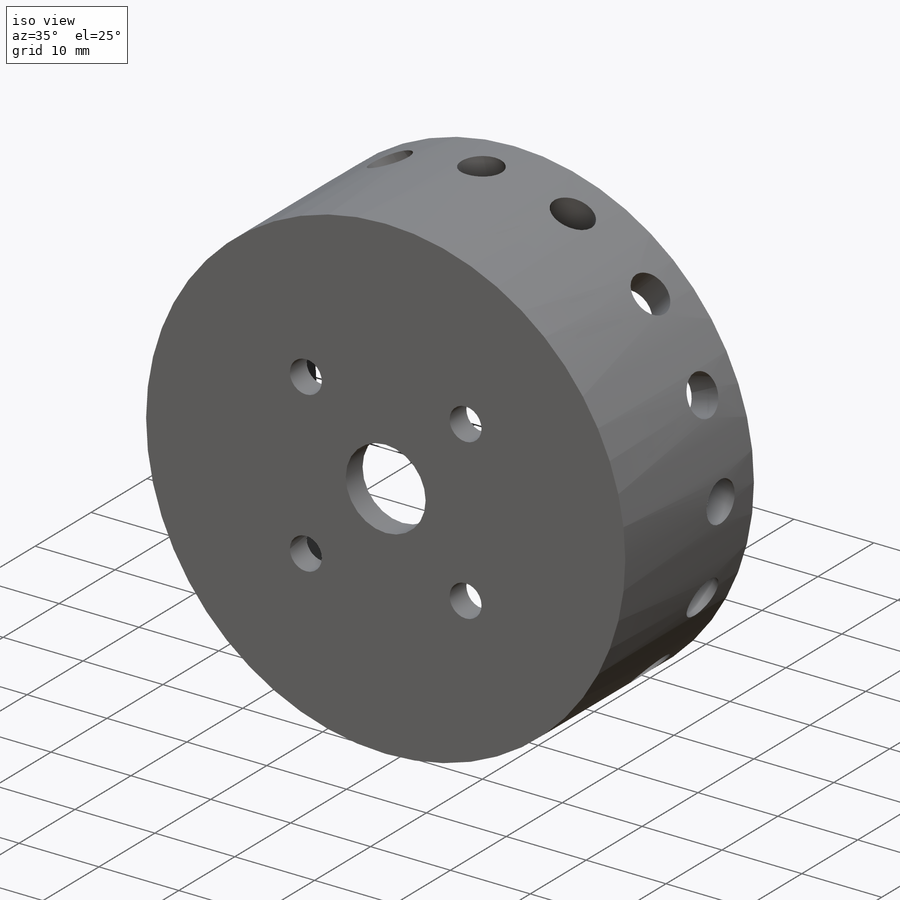
[diagram: iso view]
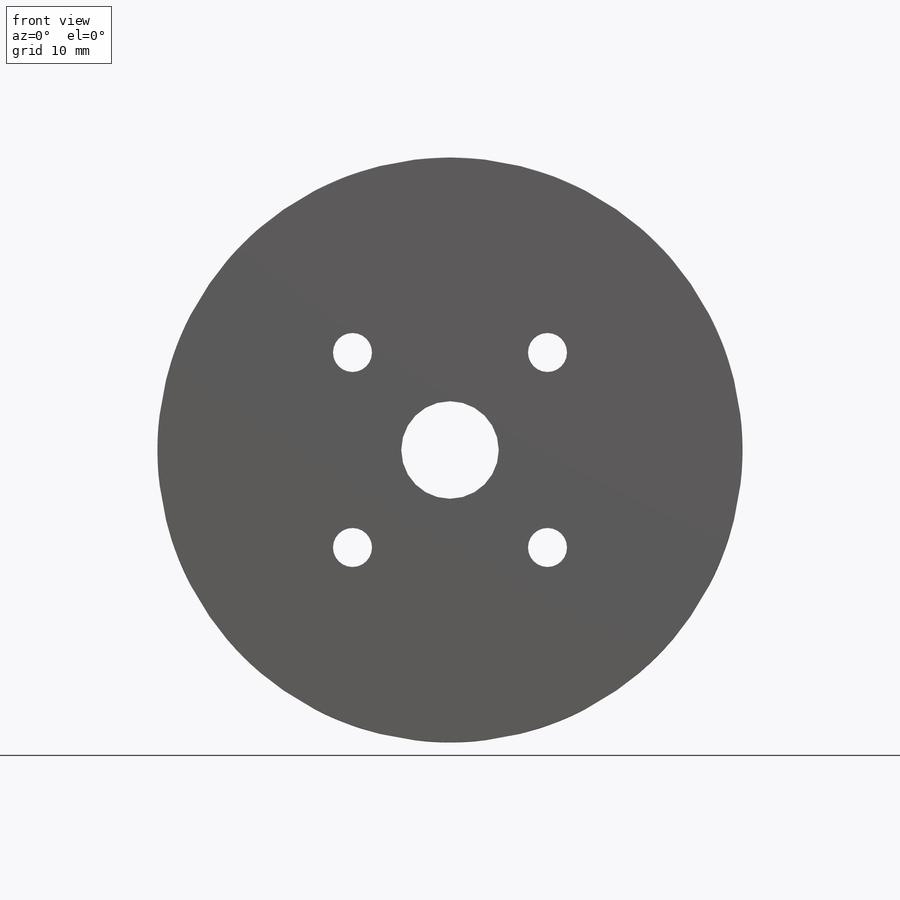
[diagram: front view]
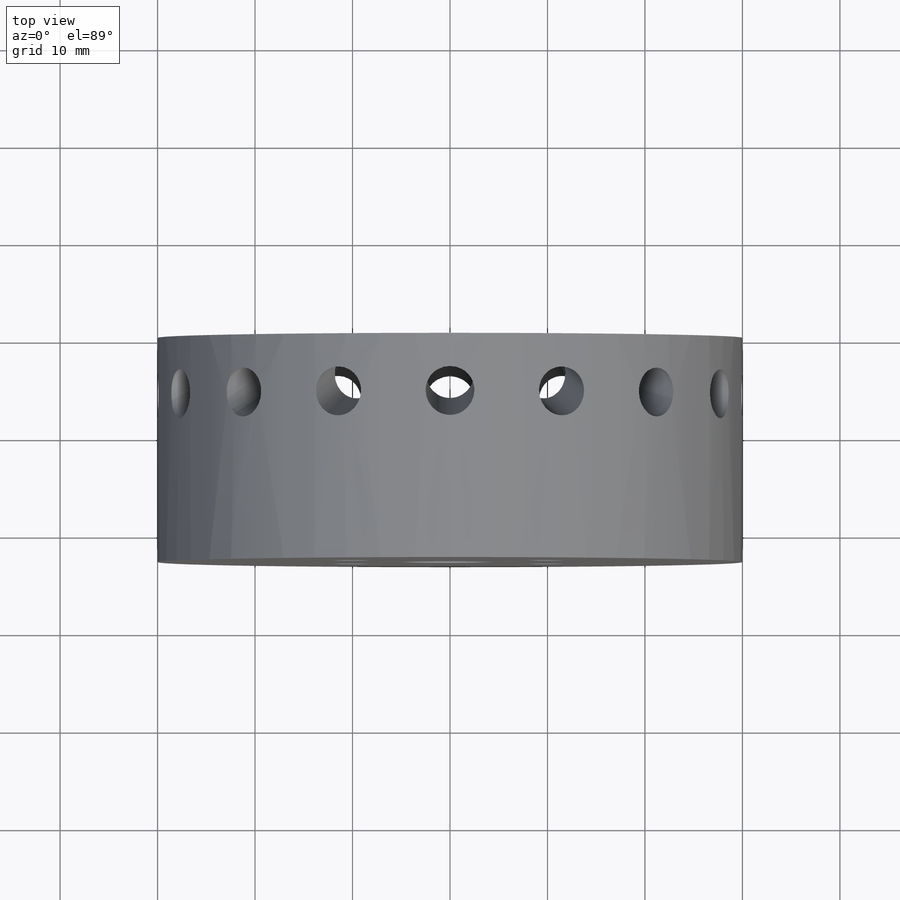
[diagram: top view]
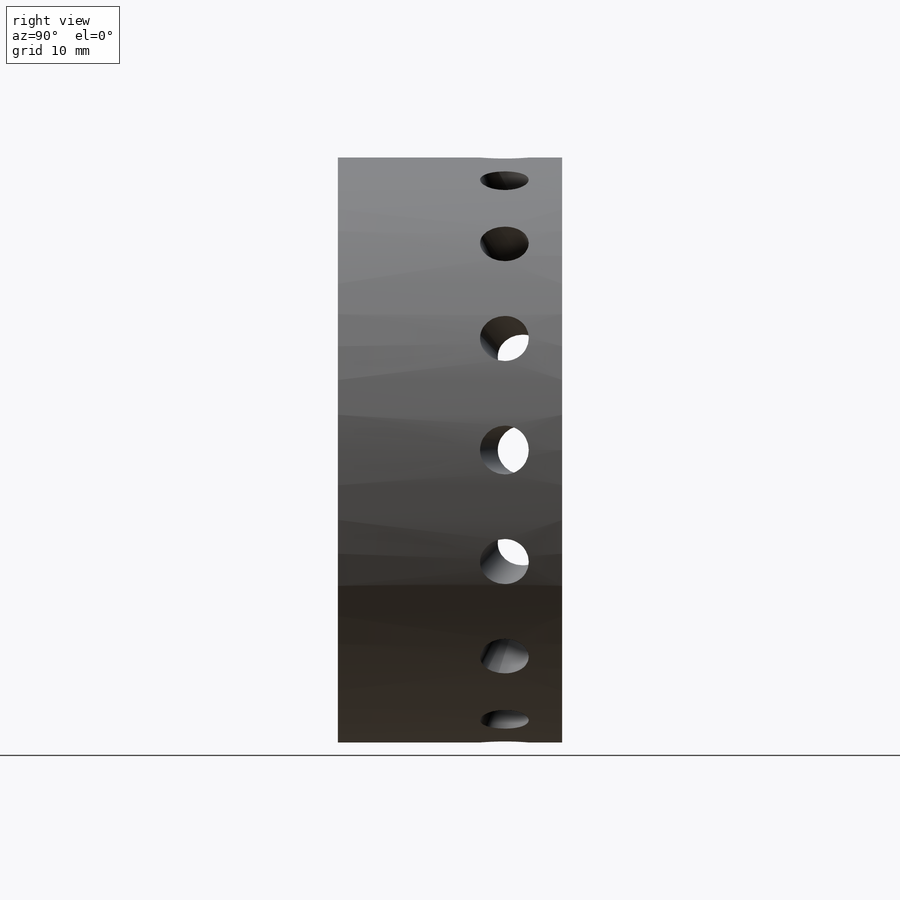
[diagram: right view]
SOLIDWORKS PART (.sldprt)
format: sldprt  version: not decoded by parser v0  size: 269,312 bytes
history: native  units: mm
features: sketch x6, plane x3, extrude x2, cut_extrude x2, pattern_circular x2, material x1, sweep x1 (+10 scaffold rows collapsed)
feature tree (27):
  scaffold x10  (default folders/planes/origin — collapsed)
  material  "Matériau <non spécifié>"
  plane  "Plan de face"
  plane  "Plan de dessus"
  plane  "Plan de droite"
  sketch  "Esquisse1"  dims[D1=60.0mm D2=50.0mm]
  extrude  "Boss.-Extru.1"  Depth=20mm
  sketch  "Esquisse2"
  extrude  "Boss.-Extru.2"  Depth=3mm
  sketch  "Esquisse4"  dims[D1=4.0mm D2=10.0mm D3=10.0mm]
  cut_extrude  "Enlèv. mat.-Extru.1"  [1 undecoded]
  pattern_circular  "Répétition circulaire1"  Count=4 Angle=90deg
  sketch  "Esquisse5"  dims[D1=5.0mm D2=0.0mm D3=5.0mm]
  sketch  "Esquisse6"  dims[c1.D1=~22.075126mm c2.D1=70.0deg c2.D2=0.0mm c2.D3=6.0mm]
  sweep  "Enlèvement de matière-Balayage1"
  pattern_circular  "Répétition circulaire2"  Count=16 Angle=360deg
  sketch  "Esquisse7"  dims[D1=10.0mm]
  cut_extrude  "Enlèv. mat.-Extru.2"  [1 undecoded]
decode coverage: 9 of 13 modeling features carry decoded parameters
note: ~ marks probable driven/reference dimensions
note: 2 parameter values undecoded
note: suppression state not decoded; provenance and decode notes live in map.json
